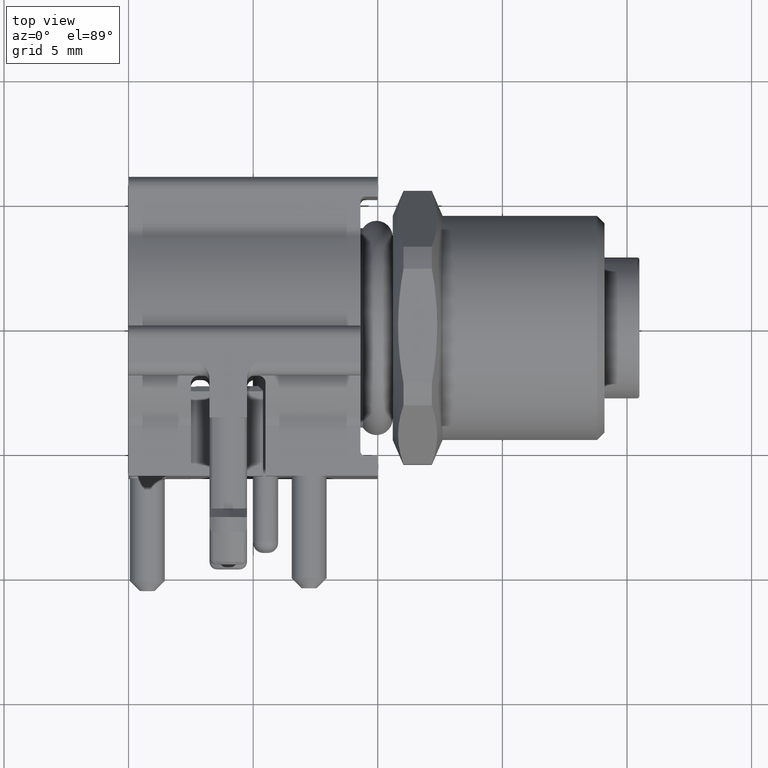
[diagram: clean part render]
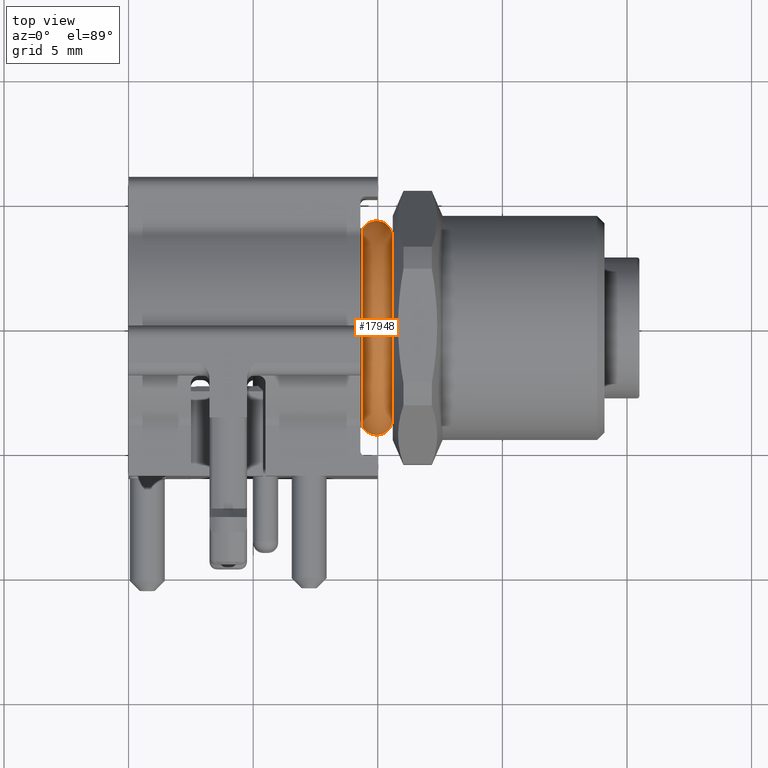
[diagram: same view with one face highlighted and labeled with its STEP entity id]
A machine part, top view. The second image highlights one B-rep face of the part: STEP entity #17948.
In plain terms, the highlighted toroidal blend (fillet) surface has major radius 3.65 mm and minor (blend) radius 0.65 mm.
Its self-contained STEP definition (entity closure, byte-faithful):
#1712=CARTESIAN_POINT('',(2.362204724410E-2,-1.312732441332E-1,
-5.845726365970E-2));
#3474=CARTESIAN_POINT('',(2.353408688890E-2,1.458207333723E-1,0.E0));
#3740=CARTESIAN_POINT('',(2.248623402046E-2,0.E0,0.E0));
#3741=DIRECTION('',(-1.E0,0.E0,0.E0));
#3742=DIRECTION('',(0.E0,-8.973775865711E-1,4.412634894481E-1));
#3743=AXIS2_PLACEMENT_3D('',#3740,#3741,#3742);
#3814=CARTESIAN_POINT('',(2.248623402046E-2,-1.221882040613E-1,
6.008306213607E-2));
#3816=CARTESIAN_POINT('',(2.248623402046E-2,-1.221882040613E-1,
6.008306213607E-2));
#3817=CARTESIAN_POINT('',(2.255685893827E-2,-1.243391943572E-1,
5.622783461423E-2));
#3818=CARTESIAN_POINT('',(2.269350496356E-2,-1.282829792528E-1,
4.829251295973E-2));
#3819=CARTESIAN_POINT('',(2.288348969670E-2,-1.330613554510E-1,
3.581730715083E-2));
#3820=CARTESIAN_POINT('',(2.305714547034E-2,-1.366505144586E-1,
2.287464116788E-2));
#3821=CARTESIAN_POINT('',(2.321283485110E-2,-1.390080514346E-1,
9.573811528493E-3));
#3822=CARTESIAN_POINT('',(2.334858632887E-2,-1.401017459373E-1,
-3.976976624486E-3));
#3823=CARTESIAN_POINT('',(2.346189865110E-2,-1.399081405777E-1,
-1.766720764430E-2));
#3824=CARTESIAN_POINT('',(2.354955791430E-2,-1.384123365883E-1,
-3.138745515785E-2));
#3825=CARTESIAN_POINT('',(2.360732607287E-2,-1.356084735197E-1,
-4.502903789478E-2));
#3826=CARTESIAN_POINT('',(2.362204724410E-2,-1.328629320928E-1,
-5.401373383978E-2));
#3827=CARTESIAN_POINT('',(2.362204724410E-2,-1.312732441332E-1,
-5.845726365970E-2));
#3829=CARTESIAN_POINT('',(2.353408688890E-2,1.458207333723E-1,0.E0));
#3830=CARTESIAN_POINT('',(2.355968190539E-2,1.455128296608E-1,
4.732661676204E-3));
#3831=CARTESIAN_POINT('',(2.360097081721E-2,1.444207561036E-1,
1.411402972451E-2));
#3832=CARTESIAN_POINT('',(2.362835736312E-2,1.413950253411E-1,
2.780255569057E-2));
#3833=CARTESIAN_POINT('',(2.361457532371E-2,1.370509146542E-1,
4.092637157049E-2));
#3834=CARTESIAN_POINT('',(2.355063638346E-2,1.314847186243E-1,
5.331082692784E-2));
#3835=CARTESIAN_POINT('',(2.342466380206E-2,1.248469069747E-1,
6.475665649635E-2));
#3836=CARTESIAN_POINT('',(2.321783809225E-2,1.173096182649E-1,
7.507500413771E-2));
#3837=CARTESIAN_POINT('',(2.291784200304E-2,1.095238821183E-1,
8.365248406489E-2));
#3838=CARTESIAN_POINT('',(2.264787110975E-2,1.045369331293E-1,
8.811587456406E-2));
#3839=CARTESIAN_POINT('',(2.248623402046E-2,1.021161110738E-1,
9.006792673607E-2));
#3841=CARTESIAN_POINT('',(-1.968503937006E-3,-1.437007874016E-1,0.E0));
#3842=DIRECTION('',(0.E0,0.E0,-1.E0));
#3843=DIRECTION('',(1.E0,0.E0,0.E0));
#3844=AXIS2_PLACEMENT_3D('',#3841,#3842,#3843);
#3846=CARTESIAN_POINT('',(2.362204724410E-2,0.E0,0.E0));
#3847=DIRECTION('',(-1.E0,0.E0,0.E0));
#3848=DIRECTION('',(0.E0,-9.135179180776E-1,-4.067984923168E-1));
#3849=AXIS2_PLACEMENT_3D('',#3846,#3847,#3848);
#3851=CARTESIAN_POINT('',(-1.968503937006E-3,1.437007874016E-1,0.E0));
#3852=DIRECTION('',(0.E0,0.E0,1.E0));
#3853=DIRECTION('',(9.965627799663E-1,8.284096562650E-2,0.E0));
#3854=AXIS2_PLACEMENT_3D('',#3851,#3852,#3853);
#3861=CARTESIAN_POINT('',(-2.353238415374E-2,0.E0,0.E0));
#3862=DIRECTION('',(1.E0,0.E0,0.E0));
#3863=DIRECTION('',(0.E0,1.E0,0.E0));
#3864=AXIS2_PLACEMENT_3D('',#3861,#3862,#3863);
#13693=CARTESIAN_POINT('',(-2.353238415374E-2,1.574803149606E-1,0.E0));
#13694=CARTESIAN_POINT('',(-2.353238415374E-2,-1.574803149606E-1,0.E0));
#13695=VERTEX_POINT('',#13693);
#13696=VERTEX_POINT('',#13694);
#13697=VERTEX_POINT('',#3474);
#13701=VERTEX_POINT('',#1712);
#13702=VERTEX_POINT('',#3814);
#13703=CARTESIAN_POINT('',(2.362204724410E-2,-1.437007874016E-1,0.E0));
#13704=VERTEX_POINT('',#13703);
#13705=VERTEX_POINT('',#3839);
#17930=CARTESIAN_POINT('',(-1.968503937006E-3,0.E0,0.E0));
#17931=DIRECTION('',(1.E0,0.E0,0.E0));
#17932=DIRECTION('',(0.E0,-1.E0,0.E0));
#17933=AXIS2_PLACEMENT_3D('',#17930,#17931,#17932);
#17934=TOROIDAL_SURFACE('',#17933,1.437007874016E-1,2.559055118110E-2);
#17935=ORIENTED_EDGE('',*,*,#16484,.T.);
#17937=ORIENTED_EDGE('',*,*,#17936,.T.);
#17939=ORIENTED_EDGE('',*,*,#17938,.T.);
#17941=ORIENTED_EDGE('',*,*,#17940,.F.);
#17943=ORIENTED_EDGE('',*,*,#17942,.F.);
#17944=ORIENTED_EDGE('',*,*,#17857,.T.);
#17945=ORIENTED_EDGE('',*,*,#17922,.F.);
#17946=EDGE_LOOP('',(#17935,#17937,#17939,#17941,#17943,#17944,#17945));
#17947=FACE_OUTER_BOUND('',#17946,.F.);
#17948=ADVANCED_FACE('',(#17947),#17934,.T.);
#3744=CIRCLE('',#3743,1.361614173228E-1);
#3828=B_SPLINE_CURVE_WITH_KNOTS('',3,(#3816,#3817,#3818,#3819,#3820,#3821,#3822,
#3823,#3824,#3825,#3826,#3827),.UNSPECIFIED.,.F.,.F.,(4,1,1,1,1,1,1,1,1,4),
(0.E0,1.111111111111E-1,2.222222222222E-1,3.333333333333E-1,4.444444444444E-1,
5.555555555556E-1,6.666666666667E-1,7.777777777778E-1,8.888888888889E-1,1.E0),
.UNSPECIFIED.);
#3840=B_SPLINE_CURVE_WITH_KNOTS('',3,(#3829,#3830,#3831,#3832,#3833,#3834,#3835,
#3836,#3837,#3838,#3839),.UNSPECIFIED.,.F.,.F.,(4,1,1,1,1,1,1,1,4),(0.E0,
1.25E-1,2.5E-1,3.75E-1,5.E-1,6.25E-1,7.5E-1,8.75E-1,1.E0),.UNSPECIFIED.);
#3845=CIRCLE('',#3844,2.559055118110E-2);
#3850=CIRCLE('',#3849,1.437007874016E-1);
#3855=CIRCLE('',#3854,2.559055118110E-2);
#3865=CIRCLE('',#3864,1.574803149606E-1);
#16484=EDGE_CURVE('',#13702,#13701,#3828,.T.);
#17857=EDGE_CURVE('',#13697,#13705,#3840,.T.);
#17922=EDGE_CURVE('',#13702,#13705,#3744,.T.);
#17936=EDGE_CURVE('',#13701,#13704,#3850,.T.);
#17938=EDGE_CURVE('',#13704,#13696,#3845,.T.);
#17940=EDGE_CURVE('',#13695,#13696,#3865,.T.);
#17942=EDGE_CURVE('',#13697,#13695,#3855,.T.);